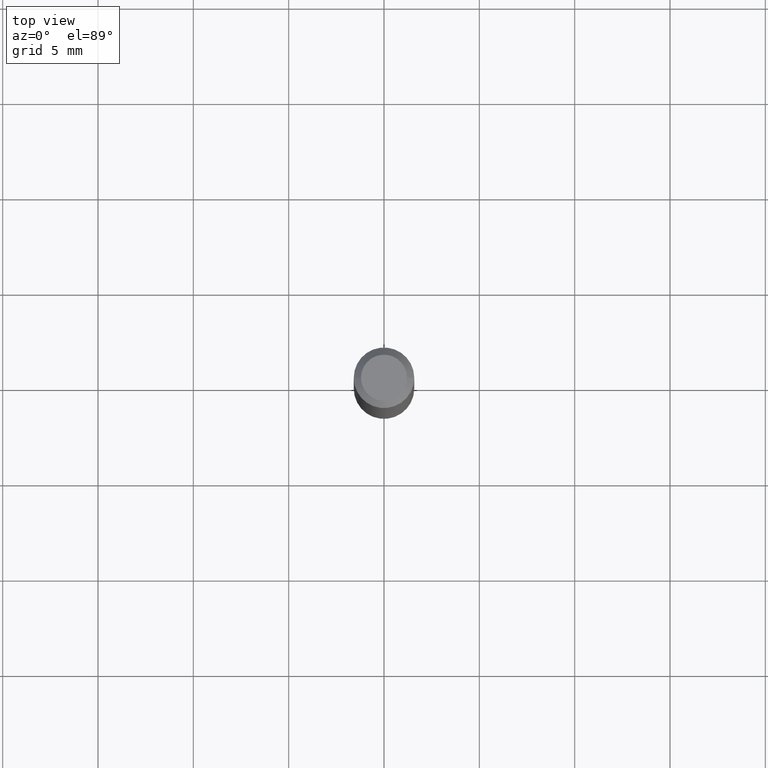
[diagram: clean part render]
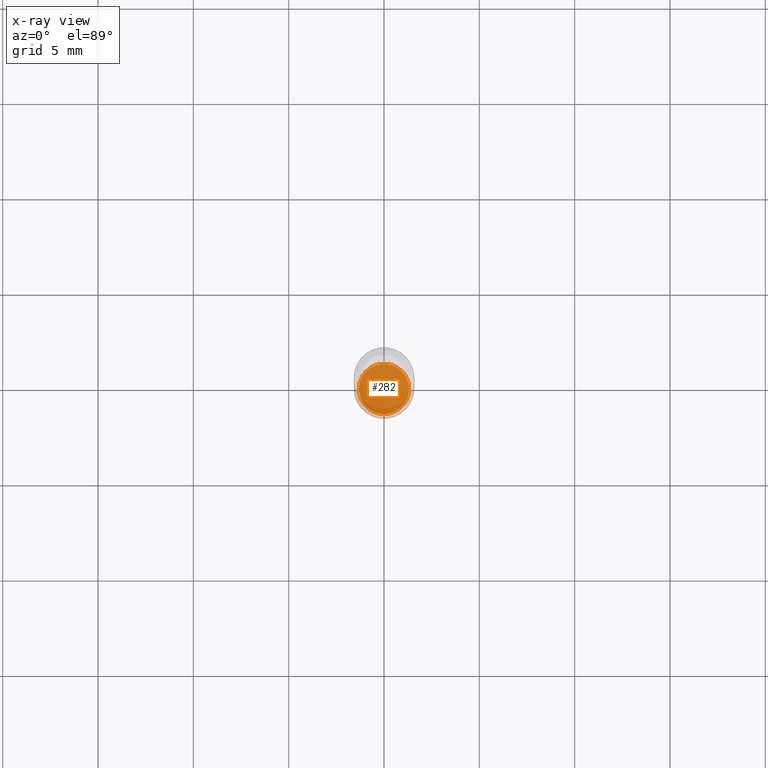
[diagram: x-ray — body ghosted, one internal face saturated and labeled with its STEP entity id]
A machine part, top view, then the same camera in x-ray: the body is ghosted and one INTERNAL B-rep face — a face not visible from any outside direction — is saturated and labeled: STEP entity #282.
In plain terms, the highlighted planar face has unit normal (-0, 0, 1).
Its self-contained STEP definition (entity closure, byte-faithful):
#1 = EDGE_CURVE ( 'NONE', #116, #23, #394, .T. ) ;
#20 = DIRECTION ( 'NONE',  ( -2.438088387897960049E-29, 3.491481338843145188E-15, 1.000000000000000000 ) ) ;
#23 = VERTEX_POINT ( 'NONE', #370 ) ;
#32 = DIRECTION ( 'NONE',  ( 1.000000000000000000, -6.982962677686265922E-15, 4.876176775795935793E-29 ) ) ;
#55 = CARTESIAN_POINT ( 'NONE',  ( -0.05200000000000005312, -4.315182247627559627E-15, -1.342500000000000249 ) ) ;
#112 = PLANE ( 'NONE',  #286 ) ;
#116 = VERTEX_POINT ( 'NONE', #55 ) ;
#121 = EDGE_CURVE ( 'NONE', #23, #116, #325, .T. ) ;
#136 = DIRECTION ( 'NONE',  ( -2.445468806185136597E-29, 3.491481338843145583E-15, 1.000000000000000000 ) ) ;
#171 = DIRECTION ( 'NONE',  ( 1.000000000000000000, -6.982962677686269866E-15, 0.000000000000000000 ) ) ;
#217 = ORIENTED_EDGE ( 'NONE', *, *, #1, .F. ) ;
#277 = ORIENTED_EDGE ( 'NONE', *, *, #121, .F. ) ;
#282 = ADVANCED_FACE ( 'NONE', ( #473 ), #112, .F. ) ;
#286 = AXIS2_PLACEMENT_3D ( 'NONE', #346, #20, #32 ) ;
#290 = DIRECTION ( 'NONE',  ( -2.445468806185136597E-29, 3.491481338843145583E-15, 1.000000000000000000 ) ) ;
#325 = CIRCLE ( 'NONE', #365, 0.05200000000000005312 ) ;
#331 = AXIS2_PLACEMENT_3D ( 'NONE', #440, #290, #401 ) ;
#334 = EDGE_LOOP ( 'NONE', ( #277, #217 ) ) ;
#346 = CARTESIAN_POINT ( 'NONE',  ( 3.283041872303546419E-29, -4.687313697396923253E-15, -1.342500000000000249 ) ) ;
#365 = AXIS2_PLACEMENT_3D ( 'NONE', #418, #136, #171 ) ;
#370 = CARTESIAN_POINT ( 'NONE',  ( 0.05200000000000005312, -5.050427756636610195E-15, -1.342500000000000249 ) ) ;
#394 = CIRCLE ( 'NONE', #331, 0.05200000000000005312 ) ;
#401 = DIRECTION ( 'NONE',  ( 1.000000000000000000, -6.982962677686269866E-15, 0.000000000000000000 ) ) ;
#418 = CARTESIAN_POINT ( 'NONE',  ( 3.283041872303546419E-29, -4.687313697396923253E-15, -1.342500000000000249 ) ) ;
#440 = CARTESIAN_POINT ( 'NONE',  ( 3.283041872303546419E-29, -4.687313697396923253E-15, -1.342500000000000249 ) ) ;
#473 = FACE_OUTER_BOUND ( 'NONE', #334, .T. ) ;